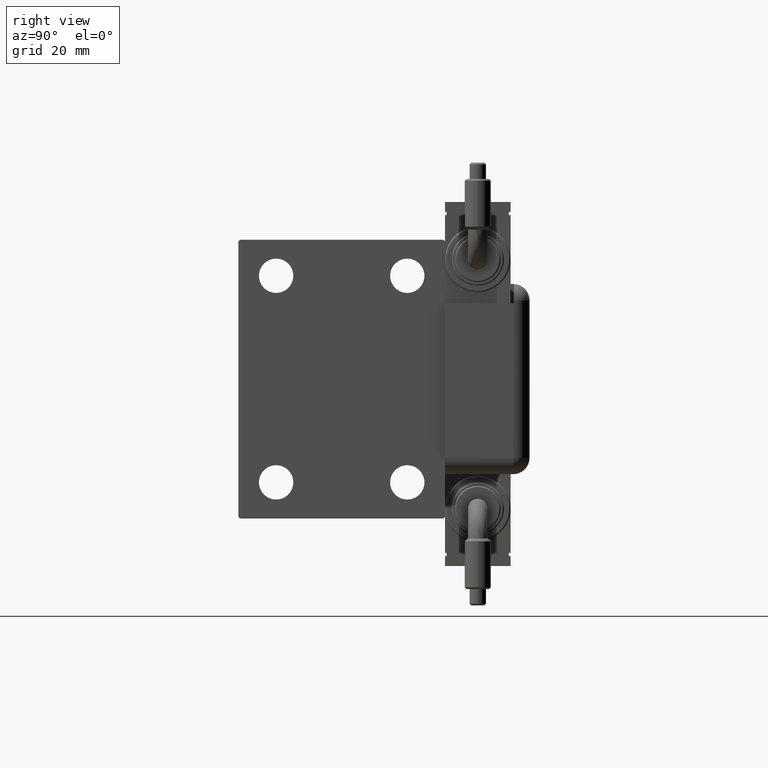
[diagram: clean part render]
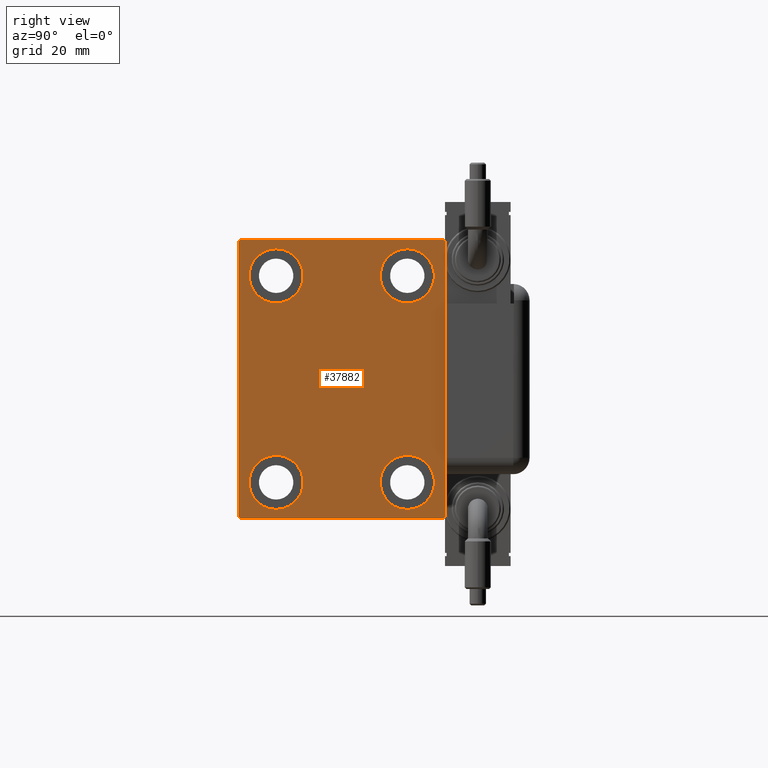
[diagram: same view with one face highlighted and labeled with its STEP entity id]
A machine part, right view. The second image highlights one B-rep face of the part: STEP entity #37882.
In plain terms, the highlighted planar face has unit normal (1, 0, 0).
Its self-contained STEP definition (entity closure, byte-faithful):
#227 = CARTESIAN_POINT ( 'NONE',  ( 93.00000000000000000, 31.50000000000000000, 41.99999999999999289 ) ) ;
#517 = CARTESIAN_POINT ( 'NONE',  ( 93.00000000000000000, -30.99999999999998579, 42.49999999999999289 ) ) ;
#598 = CIRCLE ( 'NONE', #26524, 8.250000000000000000 ) ;
#1087 = CARTESIAN_POINT ( 'NONE',  ( 93.00000000000000000, -19.99999999999999645, 23.25000000000000355 ) ) ;
#1194 = VERTEX_POINT ( 'NONE', #40256 ) ;
#1810 = CARTESIAN_POINT ( 'NONE',  ( 93.00000000000000000, -20.00000000000000355, -31.49999999999999289 ) ) ;
#1908 = EDGE_CURVE ( 'NONE', #9990, #37103, #50470, .T. ) ;
#1914 = EDGE_CURVE ( 'NONE', #14381, #47604, #9622, .T. ) ;
#2814 = DIRECTION ( 'NONE',  ( 0.000000000000000000, 0.000000000000000000, 1.000000000000000000 ) ) ;
#2828 = EDGE_CURVE ( 'NONE', #20658, #34224, #61177, .T. ) ;
#3159 = VERTEX_POINT ( 'NONE', #36762 ) ;
#3583 = LINE ( 'NONE', #16414, #28228 ) ;
#4110 = EDGE_CURVE ( 'NONE', #27559, #3159, #8347, .T. ) ;
#4205 = CARTESIAN_POINT ( 'NONE',  ( 93.00000000000000000, 0.000000000000000000, 0.000000000000000000 ) ) ;
#4514 = FACE_BOUND ( 'NONE', #51503, .T. ) ;
#4545 = CARTESIAN_POINT ( 'NONE',  ( 93.00000000000000000, 19.99999999999999645, -31.49999999999999289 ) ) ;
#4657 = CARTESIAN_POINT ( 'NONE',  ( 93.00000000000000000, -31.50000000000000000, -42.50000000000000711 ) ) ;
#5330 = LINE ( 'NONE', #28763, #60388 ) ;
#5522 = ORIENTED_EDGE ( 'NONE', *, *, #24961, .T. ) ;
#7196 = CARTESIAN_POINT ( 'NONE',  ( 93.00000000000000000, -20.00000000000000355, -31.49999999999999289 ) ) ;
#7458 = ORIENTED_EDGE ( 'NONE', *, *, #30803, .T. ) ;
#8027 = DIRECTION ( 'NONE',  ( 0.000000000000000000, 0.000000000000000000, 1.000000000000000000 ) ) ;
#8145 = CARTESIAN_POINT ( 'NONE',  ( 93.00000000000000000, -19.99999999999999645, 31.50000000000000000 ) ) ;
#8347 = LINE ( 'NONE', #42081, #22656 ) ;
#8372 = EDGE_CURVE ( 'NONE', #47604, #14381, #51899, .T. ) ;
#8533 = EDGE_LOOP ( 'NONE', ( #37500, #7458 ) ) ;
#8650 = DIRECTION ( 'NONE',  ( -1.000000000000000000, -0.000000000000000000, -0.000000000000000000 ) ) ;
#9622 = CIRCLE ( 'NONE', #21552, 8.249999999999992895 ) ;
#9990 = VERTEX_POINT ( 'NONE', #12073 ) ;
#10000 = ORIENTED_EDGE ( 'NONE', *, *, #2828, .T. ) ;
#10010 = EDGE_CURVE ( 'NONE', #24433, #1194, #22371, .T. ) ;
#10486 = CARTESIAN_POINT ( 'NONE',  ( 93.00000000000000000, -20.00000000000000355, -39.74999999999999289 ) ) ;
#12073 = CARTESIAN_POINT ( 'NONE',  ( 93.00000000000000000, 20.00000000000000355, 23.25000000000000355 ) ) ;
#12895 = VECTOR ( 'NONE', #36430, 1000.000000000000000 ) ;
#12951 = PLANE ( 'NONE',  #25654 ) ;
#13567 = DIRECTION ( 'NONE',  ( 1.000000000000000000, 0.000000000000000000, 0.000000000000000000 ) ) ;
#14226 = EDGE_CURVE ( 'NONE', #23201, #48476, #46961, .T. ) ;
#14381 = VERTEX_POINT ( 'NONE', #1087 ) ;
#14667 = CARTESIAN_POINT ( 'NONE',  ( 93.00000000000000000, -31.00000000000002842, -42.50000000000000711 ) ) ;
#16414 = CARTESIAN_POINT ( 'NONE',  ( 93.00000000000000000, -36.74999999999998579, 36.74999999999998579 ) ) ;
#16546 = DIRECTION ( 'NONE',  ( -1.000000000000000000, -0.000000000000000000, -0.000000000000000000 ) ) ;
#16686 = CARTESIAN_POINT ( 'NONE',  ( 93.00000000000000000, 31.50000000000000000, 42.50000000000000711 ) ) ;
#17547 = EDGE_CURVE ( 'NONE', #18423, #27559, #53596, .T. ) ;
#18278 = ORIENTED_EDGE ( 'NONE', *, *, #21503, .T. ) ;
#18423 = VERTEX_POINT ( 'NONE', #28203 ) ;
#19138 = ORIENTED_EDGE ( 'NONE', *, *, #34808, .T. ) ;
#20356 = EDGE_LOOP ( 'NONE', ( #43187, #43135 ) ) ;
#20380 = CARTESIAN_POINT ( 'NONE',  ( 93.00000000000000000, 19.99999999999999645, -39.74999999999999289 ) ) ;
#20635 = CARTESIAN_POINT ( 'NONE',  ( 93.00000000000000000, 20.00000000000000355, 39.74999999999999289 ) ) ;
#20658 = VERTEX_POINT ( 'NONE', #14667 ) ;
#20854 = DIRECTION ( 'NONE',  ( -1.000000000000000000, -0.000000000000000000, -0.000000000000000000 ) ) ;
#21503 = EDGE_CURVE ( 'NONE', #1194, #20658, #51790, .T. ) ;
#21552 = AXIS2_PLACEMENT_3D ( 'NONE', #35615, #16546, #8027 ) ;
#22371 = LINE ( 'NONE', #46117, #12895 ) ;
#22656 = VECTOR ( 'NONE', #27709, 999.9999999999998863 ) ;
#22747 = VERTEX_POINT ( 'NONE', #32046 ) ;
#22819 = DIRECTION ( 'NONE',  ( -1.000000000000000000, -0.000000000000000000, -0.000000000000000000 ) ) ;
#23201 = VERTEX_POINT ( 'NONE', #20380 ) ;
#23504 = AXIS2_PLACEMENT_3D ( 'NONE', #7196, #45600, #2814 ) ;
#24093 = EDGE_LOOP ( 'NONE', ( #39103, #5522, #53952, #18278, #10000, #19138, #57109, #46458 ) ) ;
#24433 = VERTEX_POINT ( 'NONE', #31619 ) ;
#24834 = CARTESIAN_POINT ( 'NONE',  ( 93.00000000000000000, -19.99999999999999645, 39.74999999999999289 ) ) ;
#24961 = EDGE_CURVE ( 'NONE', #60372, #24433, #3583, .T. ) ;
#25654 = AXIS2_PLACEMENT_3D ( 'NONE', #4205, #13567, #32307 ) ;
#26524 = AXIS2_PLACEMENT_3D ( 'NONE', #60174, #8650, #32073 ) ;
#27205 = DIRECTION ( 'NONE',  ( 0.000000000000000000, 0.000000000000000000, 1.000000000000000000 ) ) ;
#27559 = VERTEX_POINT ( 'NONE', #227 ) ;
#27673 = AXIS2_PLACEMENT_3D ( 'NONE', #36679, #31687, #55708 ) ;
#27709 = DIRECTION ( 'NONE',  ( -0.000000000000000000, -0.7071067811865376918, 0.7071067811865574537 ) ) ;
#28203 = CARTESIAN_POINT ( 'NONE',  ( 93.00000000000000000, 31.50000000000001421, -42.00000000000003553 ) ) ;
#28228 = VECTOR ( 'NONE', #31089, 1000.000000000000114 ) ;
#28528 = VECTOR ( 'NONE', #35752, 1000.000000000000000 ) ;
#28589 = DIRECTION ( 'NONE',  ( -1.000000000000000000, -0.000000000000000000, -0.000000000000000000 ) ) ;
#28763 = CARTESIAN_POINT ( 'NONE',  ( 93.00000000000000000, 36.74999999999958789, -36.75000000000061107 ) ) ;
#29033 = AXIS2_PLACEMENT_3D ( 'NONE', #4545, #28589, #42969 ) ;
#29872 = CARTESIAN_POINT ( 'NONE',  ( 93.00000000000000000, 31.50000000000001421, -42.50000000000000711 ) ) ;
#30664 = CIRCLE ( 'NONE', #27673, 8.249999999999992895 ) ;
#30803 = EDGE_CURVE ( 'NONE', #22747, #60366, #43473, .T. ) ;
#31089 = DIRECTION ( 'NONE',  ( 0.000000000000000000, -0.7071067811865474617, -0.7071067811865474617 ) ) ;
#31619 = CARTESIAN_POINT ( 'NONE',  ( 93.00000000000000000, -31.50000000000000000, 41.99999999999997868 ) ) ;
#31687 = DIRECTION ( 'NONE',  ( -1.000000000000000000, -0.000000000000000000, -0.000000000000000000 ) ) ;
#32046 = CARTESIAN_POINT ( 'NONE',  ( 93.00000000000000000, -20.00000000000000355, -23.24999999999999289 ) ) ;
#32073 = DIRECTION ( 'NONE',  ( 0.000000000000000000, 0.000000000000000000, 1.000000000000000000 ) ) ;
#32307 = DIRECTION ( 'NONE',  ( 0.000000000000000000, 0.000000000000000000, -1.000000000000000000 ) ) ;
#33909 = CARTESIAN_POINT ( 'NONE',  ( 93.00000000000000000, 19.99999999999999645, -23.24999999999999289 ) ) ;
#34224 = VERTEX_POINT ( 'NONE', #47420 ) ;
#34808 = EDGE_CURVE ( 'NONE', #34224, #18423, #5330, .T. ) ;
#35615 = CARTESIAN_POINT ( 'NONE',  ( 93.00000000000000000, -19.99999999999999645, 31.50000000000000000 ) ) ;
#35617 = EDGE_CURVE ( 'NONE', #3159, #60372, #54175, .T. ) ;
#35752 = DIRECTION ( 'NONE',  ( 0.000000000000000000, -1.000000000000000000, -2.202823461557850341E-16 ) ) ;
#36430 = DIRECTION ( 'NONE',  ( 0.000000000000000000, 0.000000000000000000, -1.000000000000000000 ) ) ;
#36679 = CARTESIAN_POINT ( 'NONE',  ( 93.00000000000000000, 20.00000000000000355, 31.50000000000000000 ) ) ;
#36762 = CARTESIAN_POINT ( 'NONE',  ( 93.00000000000000000, 31.00000000000000000, 42.50000000000000711 ) ) ;
#36997 = FACE_OUTER_BOUND ( 'NONE', #24093, .T. ) ;
#37103 = VERTEX_POINT ( 'NONE', #20635 ) ;
#37500 = ORIENTED_EDGE ( 'NONE', *, *, #38341, .T. ) ;
#37882 = ADVANCED_FACE ( 'NONE', ( #47300, #4514, #55722, #47614, #36997 ), #12951, .T. ) ;
#38341 = EDGE_CURVE ( 'NONE', #60366, #22747, #60520, .T. ) ;
#38438 = DIRECTION ( 'NONE',  ( -0.000000000000000000, 0.7071067811865573427, 0.7071067811865376918 ) ) ;
#38716 = EDGE_CURVE ( 'NONE', #37103, #9990, #30664, .T. ) ;
#39103 = ORIENTED_EDGE ( 'NONE', *, *, #35617, .T. ) ;
#39246 = ORIENTED_EDGE ( 'NONE', *, *, #45560, .T. ) ;
#39906 = DIRECTION ( 'NONE',  ( 0.000000000000000000, 0.000000000000000000, 1.000000000000000000 ) ) ;
#40254 = EDGE_LOOP ( 'NONE', ( #57665, #39246 ) ) ;
#40256 = CARTESIAN_POINT ( 'NONE',  ( 93.00000000000000000, -31.50000000000000000, -42.00000000000002132 ) ) ;
#41464 = ORIENTED_EDGE ( 'NONE', *, *, #1914, .T. ) ;
#42081 = CARTESIAN_POINT ( 'NONE',  ( 93.00000000000000000, 36.75000000000044054, 36.74999999999941735 ) ) ;
#42969 = DIRECTION ( 'NONE',  ( 0.000000000000000000, 0.000000000000000000, 1.000000000000000000 ) ) ;
#43135 = ORIENTED_EDGE ( 'NONE', *, *, #38716, .T. ) ;
#43187 = ORIENTED_EDGE ( 'NONE', *, *, #1908, .T. ) ;
#43473 = CIRCLE ( 'NONE', #23504, 8.250000000000000000 ) ;
#44378 = CARTESIAN_POINT ( 'NONE',  ( 93.00000000000000000, 20.00000000000000355, 31.50000000000000000 ) ) ;
#45560 = EDGE_CURVE ( 'NONE', #48476, #23201, #598, .T. ) ;
#45600 = DIRECTION ( 'NONE',  ( -1.000000000000000000, -0.000000000000000000, -0.000000000000000000 ) ) ;
#46060 = VECTOR ( 'NONE', #46790, 1000.000000000000114 ) ;
#46117 = CARTESIAN_POINT ( 'NONE',  ( 93.00000000000000000, -31.50000000000000000, 42.49999999999999289 ) ) ;
#46458 = ORIENTED_EDGE ( 'NONE', *, *, #4110, .T. ) ;
#46582 = AXIS2_PLACEMENT_3D ( 'NONE', #1810, #20854, #39906 ) ;
#46790 = DIRECTION ( 'NONE',  ( -0.000000000000000000, 0.7071067811865376918, -0.7071067811865573427 ) ) ;
#46961 = CIRCLE ( 'NONE', #29033, 8.250000000000000000 ) ;
#47300 = FACE_BOUND ( 'NONE', #40254, .T. ) ;
#47420 = CARTESIAN_POINT ( 'NONE',  ( 93.00000000000000000, 31.00000000000002842, -42.50000000000000711 ) ) ;
#47604 = VERTEX_POINT ( 'NONE', #24834 ) ;
#47614 = FACE_BOUND ( 'NONE', #8533, .T. ) ;
#48476 = VERTEX_POINT ( 'NONE', #33909 ) ;
#48524 = VECTOR ( 'NONE', #60556, 1000.000000000000000 ) ;
#48928 = DIRECTION ( 'NONE',  ( 0.000000000000000000, -1.632680918566406300E-16, 1.000000000000000000 ) ) ;
#50470 = CIRCLE ( 'NONE', #58458, 8.249999999999992895 ) ;
#51503 = EDGE_LOOP ( 'NONE', ( #41464, #56433 ) ) ;
#51790 = LINE ( 'NONE', #55836, #46060 ) ;
#51899 = CIRCLE ( 'NONE', #58895, 8.249999999999992895 ) ;
#53596 = LINE ( 'NONE', #29872, #58001 ) ;
#53952 = ORIENTED_EDGE ( 'NONE', *, *, #10010, .T. ) ;
#54175 = LINE ( 'NONE', #16686, #28528 ) ;
#55708 = DIRECTION ( 'NONE',  ( 0.000000000000000000, 0.000000000000000000, 1.000000000000000000 ) ) ;
#55722 = FACE_BOUND ( 'NONE', #20356, .T. ) ;
#55836 = CARTESIAN_POINT ( 'NONE',  ( 93.00000000000000000, -36.75000000000045475, -36.74999999999943867 ) ) ;
#56433 = ORIENTED_EDGE ( 'NONE', *, *, #8372, .T. ) ;
#57109 = ORIENTED_EDGE ( 'NONE', *, *, #17547, .T. ) ;
#57665 = ORIENTED_EDGE ( 'NONE', *, *, #14226, .T. ) ;
#58001 = VECTOR ( 'NONE', #48928, 1000.000000000000000 ) ;
#58458 = AXIS2_PLACEMENT_3D ( 'NONE', #44378, #60480, #59340 ) ;
#58895 = AXIS2_PLACEMENT_3D ( 'NONE', #8145, #22819, #27205 ) ;
#59340 = DIRECTION ( 'NONE',  ( 0.000000000000000000, 0.000000000000000000, 1.000000000000000000 ) ) ;
#60174 = CARTESIAN_POINT ( 'NONE',  ( 93.00000000000000000, 19.99999999999999645, -31.49999999999999289 ) ) ;
#60366 = VERTEX_POINT ( 'NONE', #10486 ) ;
#60372 = VERTEX_POINT ( 'NONE', #517 ) ;
#60388 = VECTOR ( 'NONE', #38438, 1000.000000000000114 ) ;
#60480 = DIRECTION ( 'NONE',  ( -1.000000000000000000, -0.000000000000000000, -0.000000000000000000 ) ) ;
#60520 = CIRCLE ( 'NONE', #46582, 8.250000000000000000 ) ;
#60556 = DIRECTION ( 'NONE',  ( 0.000000000000000000, 1.000000000000000000, 0.000000000000000000 ) ) ;
#61177 = LINE ( 'NONE', #4657, #48524 ) ;